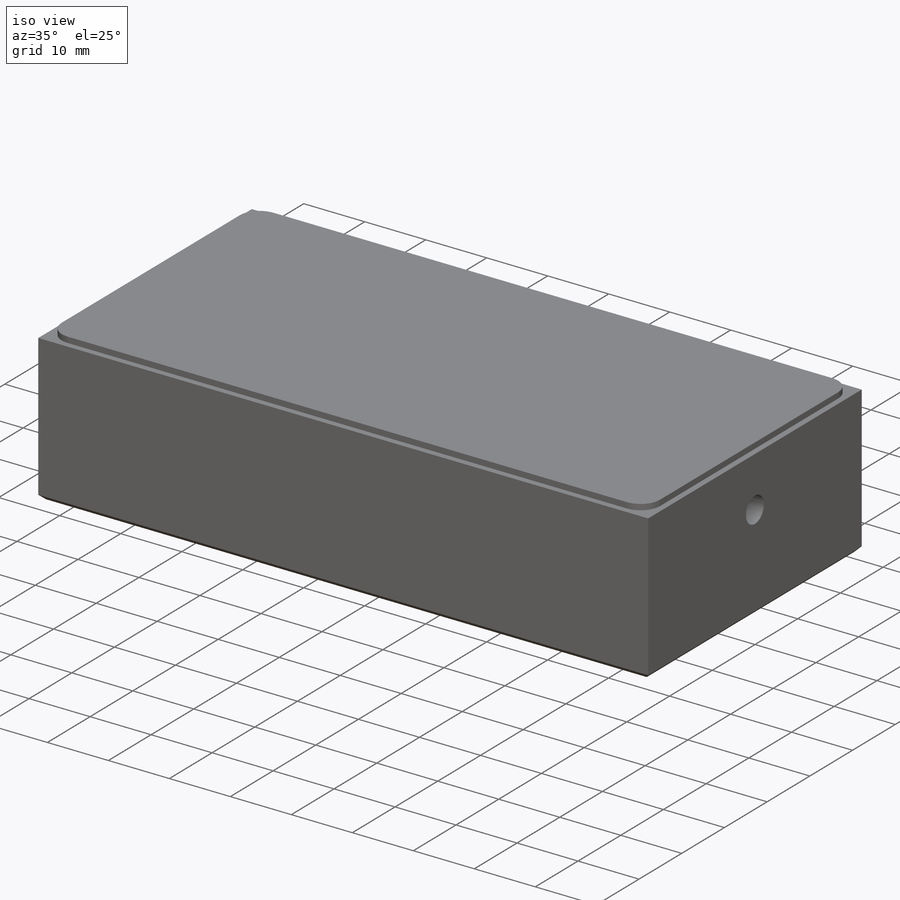
[diagram: iso view]
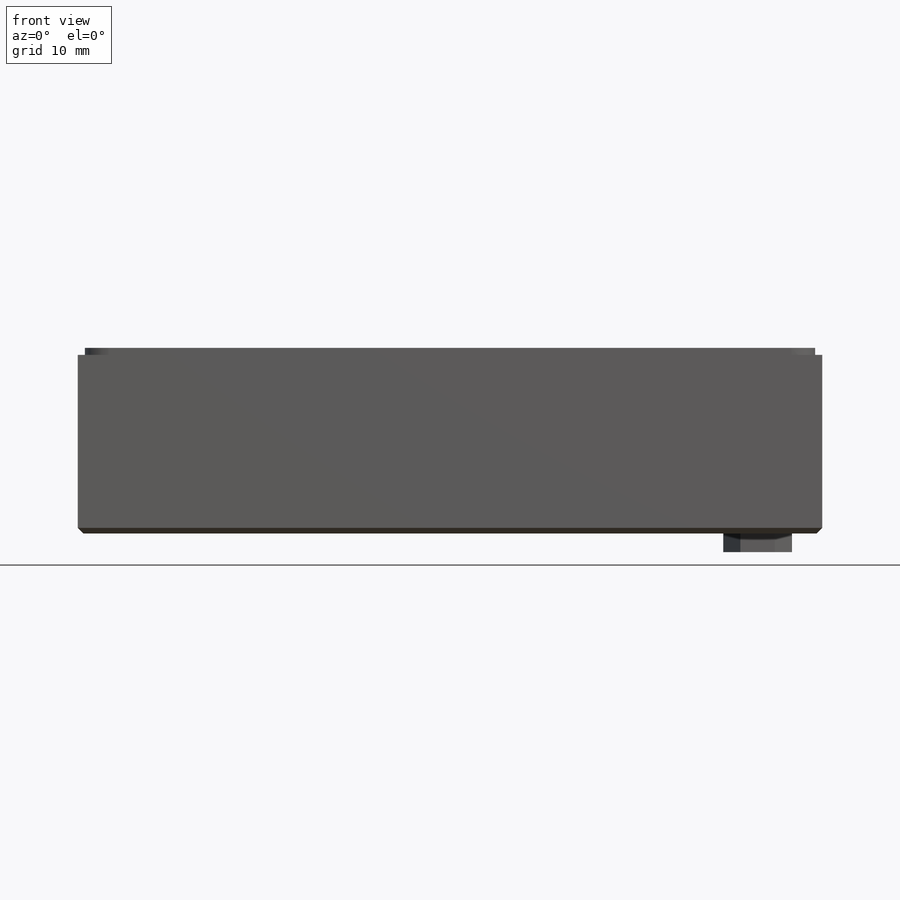
[diagram: front view]
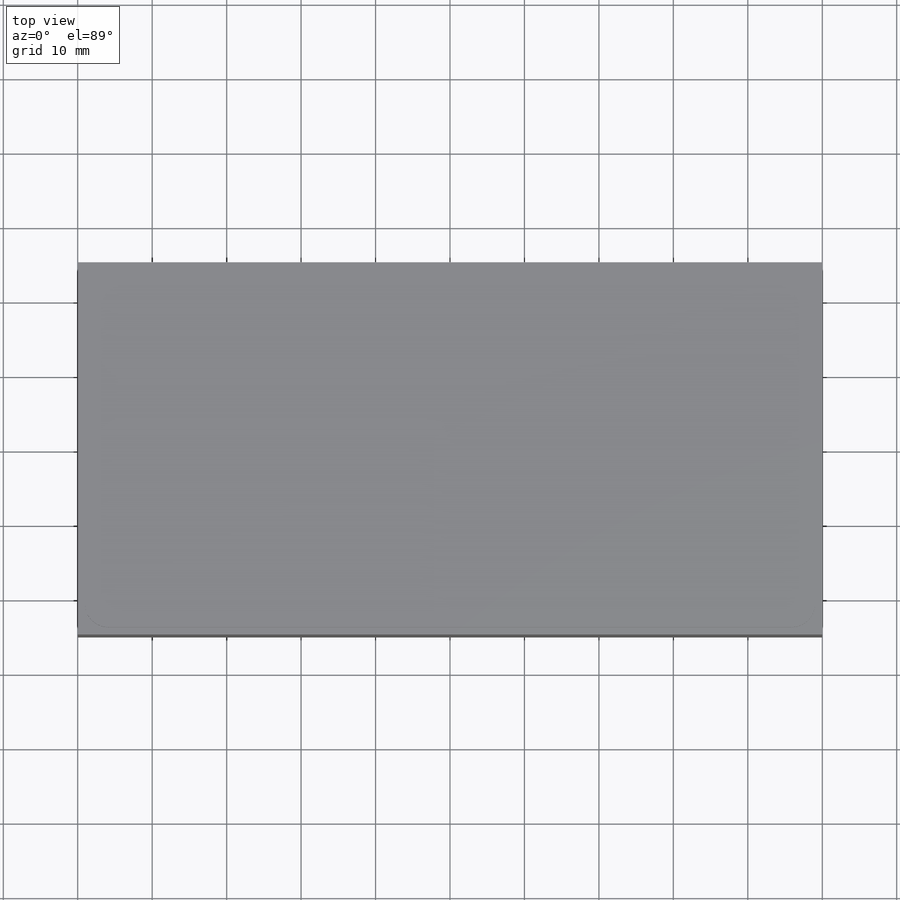
[diagram: top view]
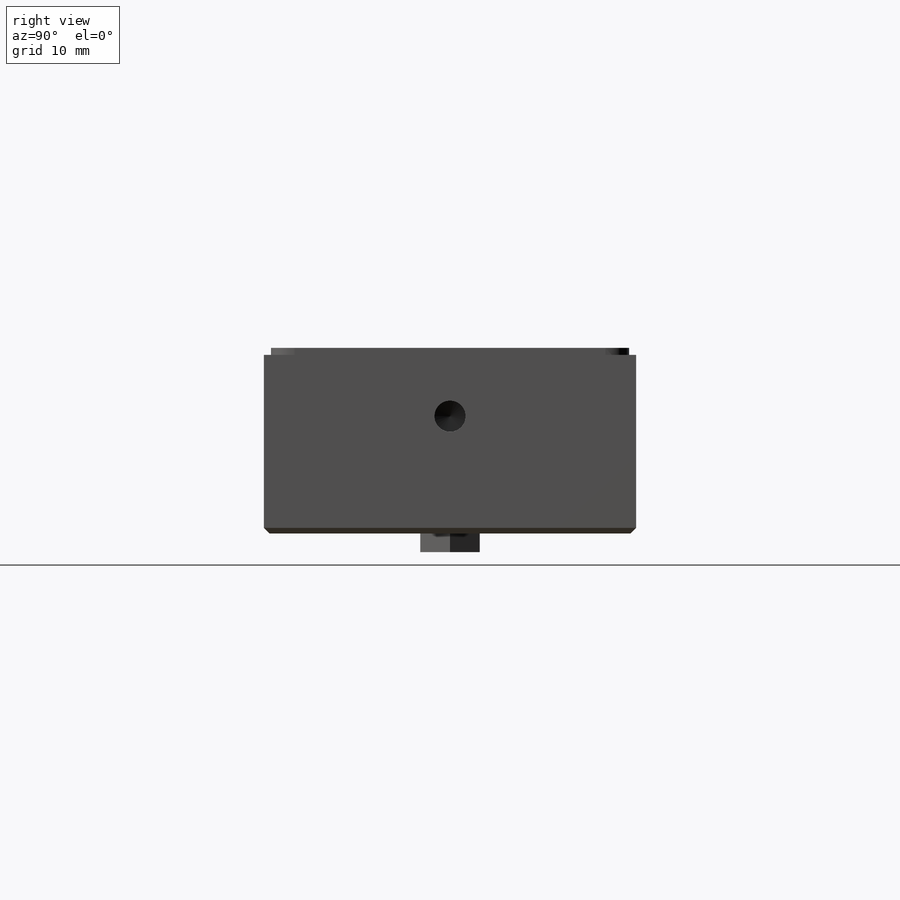
[diagram: right view]
SOLIDWORKS PART (.sldprt)
format: sldprt  version: not decoded by parser v0  size: 496,128 bytes
history: native  units: mm
features: sketch x16, hole x6, pattern_circular x4, extrude x3, material x1, thread x1, plane x1, cut_revolve x1, chamfer x1 (+15 scaffold rows collapsed)
feature tree (49):
  scaffold x15  (default folders/planes/origin — collapsed)
  material  "6061 Alloy"
  sketch  "Sketch1"  dims[D1=50.0mm D2=99.9998mm]
  extrude  "Main Extrude"  Depth=24.003mm
  sketch  "Sketch2"  dims[D5=3.175mm D1=0.9525mm D2=98.0948mm D3=0.9525mm D4=48.1076mm]
  hole  "1/8 (0.125) Diameter Hole1"  Diameter=3.175mm Depth=5.08mm
  sketch  "Sketch7"  dims[c1.D1=8.001mm c1.D2=20.0152mm c2.D1=25.0mm]
  sketch  "Sketch6"  dims[hole-wizard template sketch: 47 standard entries collapsed; hole parameters kept: c15.Hole Depth=5.08mm c15.D3=~14.816244mm c15.Drill Angle=180.0deg]
  hole  "M3x0.5 Tapped Hole1"  [1 undecoded]
  sketch  "Sketch9"  dims[D1=10.795mm]
  thread  "Hole Thread2"  Diameter=5.999988mm  [1 undecoded]
  sketch  "Sketch8"  dims[hole-wizard template sketch: 47 standard entries collapsed; hole parameters kept: c15.Tap Drill Depth=6.35mm c15.D3=~14.816244mm c15.Drill Angle=180.0deg]
  pattern_circular  "CirPattern1"  Count=3 Angle=360deg
  hole  "3/16 (0.1875) Diameter Hole1"  Diameter=4.7625mm Depth=6.2484mm
  sketch  "Sketch11"
  sketch  "Sketch10"  dims[hole-wizard template sketch: 47 standard entries collapsed; hole parameters kept: c15.Hole Depth=6.2484mm c15.D3=~14.816244mm c15.Drill Angle=180.0deg]
  plane  "Plane1"  Offset=0.508mm
  sketch  "Sketch12"  dims[D1=13.0048mm]
  cut_revolve  "Cut-Revolve1"  Angle=360deg
  hole  "M3x0.5 Tapped Hole2"  Diameter=2.5mm Depth=5.801995mm
  sketch  "Sketch14"  dims[D1=75.0mm]
  sketch  "Sketch13"  dims[hole-wizard template sketch: 47 standard entries collapsed; hole parameters kept: c15.Tap Drill Depth=~5.801995mm c15.D3=~14.816244mm c15.Drill Angle=118.0deg]
  pattern_circular  "Hole Thread3"  [2 undecoded]
  hole  "M5x0.8 Tapped Hole2"  Diameter=4.2mm Depth=12.7mm
  sketch  "Sketch18"  dims[c1.D1=15.748mm c1.D2=24.003mm c2.D1=15.748mm]
  sketch  "Sketch17"  dims[hole-wizard template sketch: 47 standard entries collapsed; hole parameters kept: c15.Tap Drill Depth=12.7mm c15.D3=~14.816244mm c15.Drill Angle=118.0deg]
  pattern_circular  "Hole Thread5"  [2 undecoded]
  hole  "M5x0.8 Tapped Hole1"  [1 undecoded]
  sketch  "Sketch16"  dims[D1=91.313mm]
  pattern_circular  "Hole Thread4"  [2 undecoded]
  sketch  "Sketch15"  dims[hole-wizard template sketch: 60 standard entries collapsed; hole parameters kept: c18.Thru Tap Drill Depth=24.003mm]
  chamfer  "Chamfer1"  Distance=0.762mm Angle=45deg
  extrude  "Extrude1"  Depth=0.9398mm
  sketch  "Sketch19"  dims[D1=8.001mm]
  extrude  "Extrude2"  Depth=2.49936mm Air Groove Width=4.7625mm Land Width=6.096mm
decode coverage: 26 of 32 modeling features carry decoded parameters
note: ~ marks probable driven/reference dimensions
note: 9 parameter values undecoded
summary: Diameter pulled from absorbed wizard sketch
note: suppression state not decoded; provenance and decode notes live in map.json
